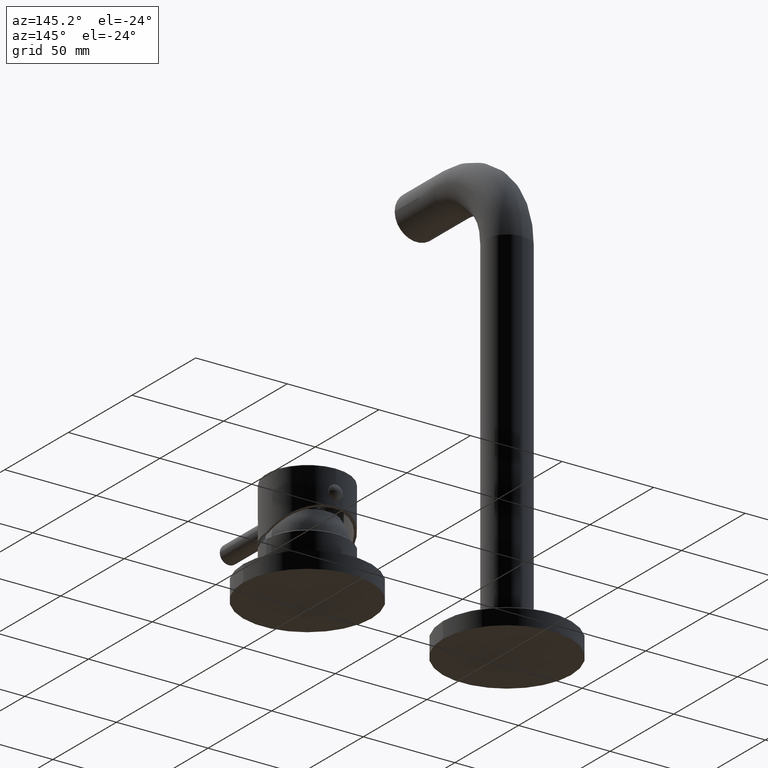
[diagram: clean part render]
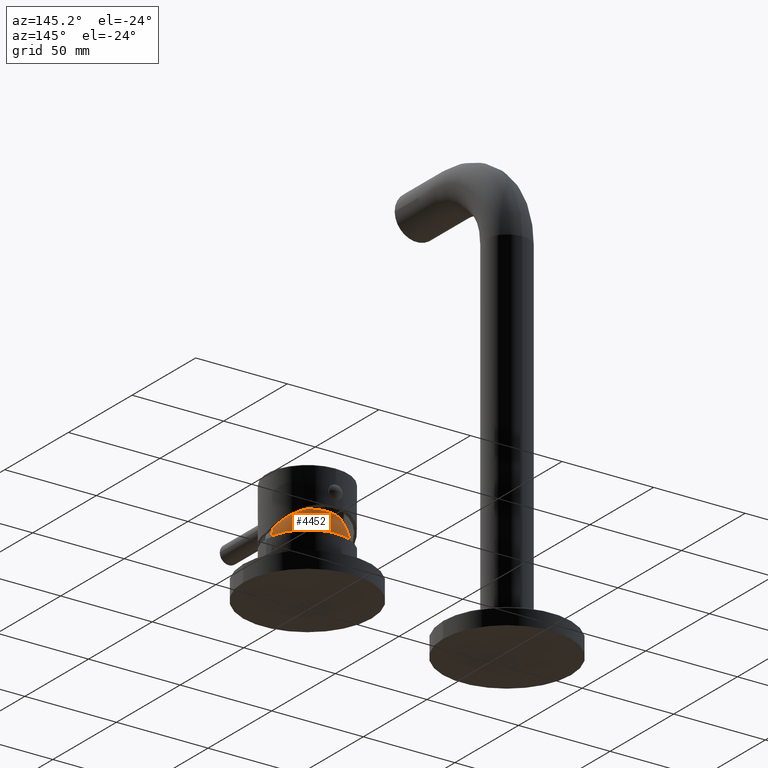
[diagram: same view with one face highlighted and labeled with its STEP entity id]
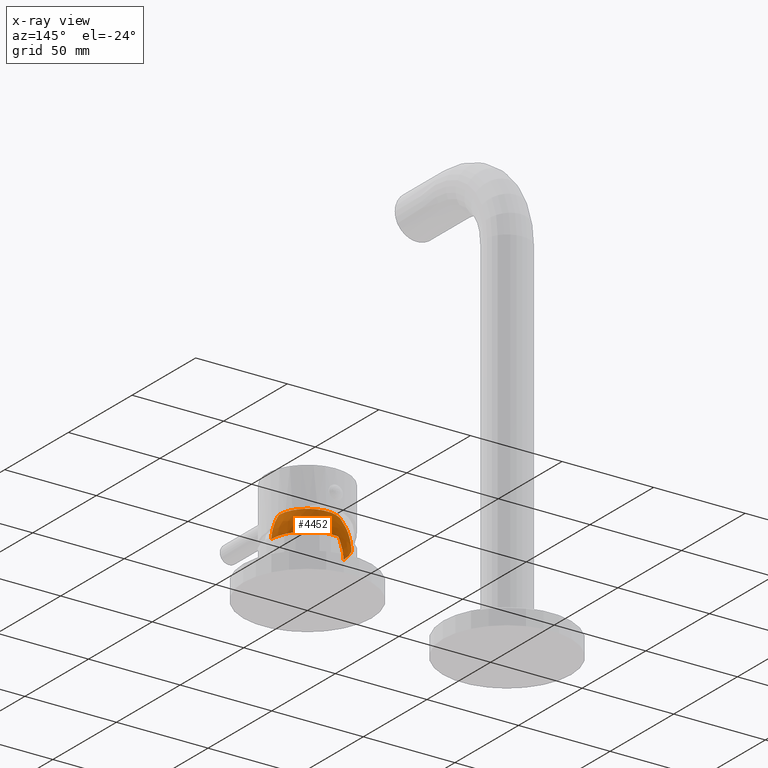
[diagram: x-ray of the same camera — body ghosted, the highlighted face saturated]
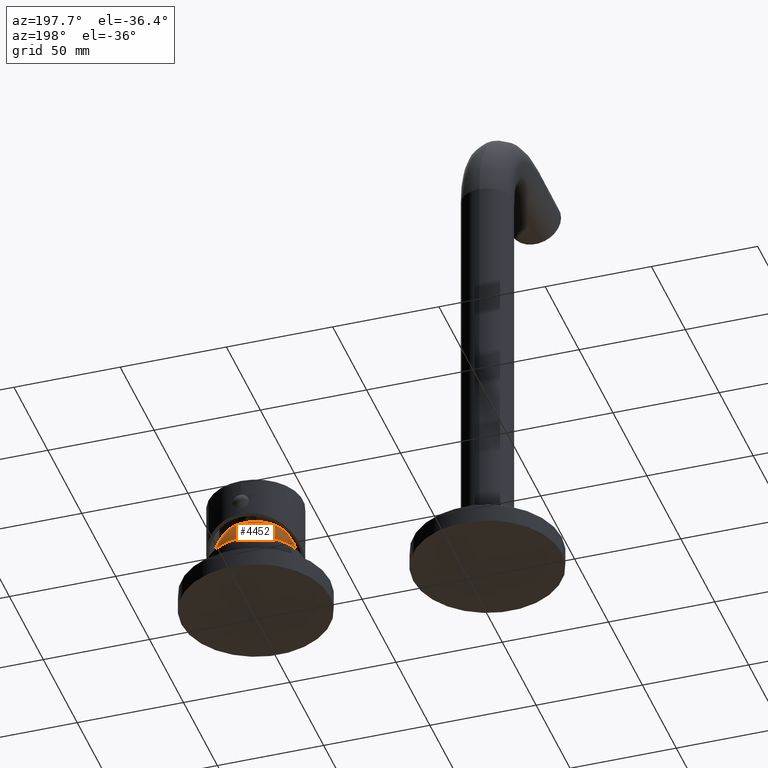
[diagram: same view with one face highlighted and labeled with its STEP entity id]
A machine part, auxiliary view. The second image highlights one B-rep face of the part: STEP entity #4452.
The next image is the same camera in x-ray: the body ghosted, the highlighted face saturated — about 1% of this face is hidden behind the body in this view.
A second angle (auxiliary view) of the same face is appended — the face is thin or edge-on in the first view.
In plain terms, the highlighted face is a freeform B-spline surface patch.
Its self-contained STEP definition (entity closure, byte-faithful):
#915=CARTESIAN_POINT('',(0.E0,0.E0,7.95E1));
#916=DIRECTION('',(0.E0,0.E0,-1.E0));
#917=DIRECTION('',(-1.E0,0.E0,0.E0));
#918=AXIS2_PLACEMENT_3D('',#915,#916,#917);
#920=CARTESIAN_POINT('',(1.004726332328E1,0.E0,6.401934569555E1));
#921=DIRECTION('',(0.E0,1.E0,0.E0));
#922=DIRECTION('',(-9.965754441095E-1,0.E0,8.268847681486E-2));
#923=AXIS2_PLACEMENT_3D('',#920,#921,#922);
#925=CARTESIAN_POINT('',(-1.004726332328E1,1.035984162831E-14,
6.401934569555E1));
#926=DIRECTION('',(0.E0,-1.E0,0.E0));
#927=DIRECTION('',(9.965754441095E-1,0.E0,8.268847681486E-2));
#928=AXIS2_PLACEMENT_3D('',#925,#926,#927);
#940=CARTESIAN_POINT('',(0.E0,0.E0,6.65E1));
#941=DIRECTION('',(0.E0,0.E0,-1.E0));
#942=DIRECTION('',(-1.E0,0.E0,0.E0));
#943=AXIS2_PLACEMENT_3D('',#940,#941,#942);
#2883=CARTESIAN_POINT('',(-1.565E1,0.E0,7.95E1));
#2884=CARTESIAN_POINT('',(1.565E1,0.E0,7.95E1));
#2885=VERTEX_POINT('',#2883);
#2886=VERTEX_POINT('',#2884);
#2887=CARTESIAN_POINT('',(-1.985E1,1.032989575081E-14,6.65E1));
#2888=CARTESIAN_POINT('',(1.985E1,0.E0,6.65E1));
#2889=VERTEX_POINT('',#2887);
#2890=VERTEX_POINT('',#2888);
#4417=CARTESIAN_POINT('',(-1.547607681865E1,-9.736722234376E-1,
7.973545845742E1));
#4418=CARTESIAN_POINT('',(-1.799821744053E1,-1.132351861430E0,
7.562642343802E1));
#4419=CARTESIAN_POINT('',(-1.947832181786E1,-1.225472135830E0,
7.103609000990E1));
#4420=CARTESIAN_POINT('',(-1.983231881511E1,-1.247743739121E0,
6.622519285487E1));
#4421=CARTESIAN_POINT('',(-1.607527333919E1,8.550283742432E0,7.973545845742E1));
#4422=CARTESIAN_POINT('',(-1.869506518770E1,9.943725905327E0,7.562642343802E1));
#4423=CARTESIAN_POINT('',(-2.023247565128E1,1.076145978859E1,7.103609000990E1));
#4424=CARTESIAN_POINT('',(-2.060017856196E1,1.095703744086E1,6.622519285487E1));
#4425=CARTESIAN_POINT('',(-9.542786475136E0,1.550667570099E1,7.973545845742E1));
#4426=CARTESIAN_POINT('',(-1.109797708945E1,1.803380303138E1,7.562642343802E1));
#4427=CARTESIAN_POINT('',(-1.201063216343E1,1.951683383123E1,7.103609000990E1));
#4428=CARTESIAN_POINT('',(-1.222891214467E1,1.987153074181E1,6.622519285487E1));
#4429=CARTESIAN_POINT('',(0.E0,1.550667570099E1,7.973545845742E1));
#4430=CARTESIAN_POINT('',(0.E0,1.803380303138E1,7.562642343802E1));
#4431=CARTESIAN_POINT('',(0.E0,1.951683383123E1,7.103609000990E1));
#4432=CARTESIAN_POINT('',(0.E0,1.987153074181E1,6.622519285487E1));
#4433=CARTESIAN_POINT('',(9.542786475136E0,1.550667570099E1,7.973545845742E1));
#4434=CARTESIAN_POINT('',(1.109797708945E1,1.803380303138E1,7.562642343802E1));
#4435=CARTESIAN_POINT('',(1.201063216343E1,1.951683383123E1,7.103609000990E1));
#4436=CARTESIAN_POINT('',(1.222891214467E1,1.987153074181E1,6.622519285487E1));
#4437=CARTESIAN_POINT('',(1.607527333919E1,8.550283742432E0,7.973545845742E1));
#4438=CARTESIAN_POINT('',(1.869506518770E1,9.943725905327E0,7.562642343802E1));
#4439=CARTESIAN_POINT('',(2.023247565128E1,1.076145978859E1,7.103609000990E1));
#4440=CARTESIAN_POINT('',(2.060017856196E1,1.095703744086E1,6.622519285487E1));
#4441=CARTESIAN_POINT('',(1.547607681865E1,-9.736722234376E-1,
7.973545845742E1));
#4442=CARTESIAN_POINT('',(1.799821744053E1,-1.132351861430E0,7.562642343802E1));
#4443=CARTESIAN_POINT('',(1.947832181786E1,-1.225472135830E0,7.103609000990E1));
#4444=CARTESIAN_POINT('',(1.983231881511E1,-1.247743739121E0,6.622519285487E1));
#4445=(BOUNDED_SURFACE()B_SPLINE_SURFACE(3,3,((#4417,#4418,#4419,#4420),(#4421,
#4422,#4423,#4424),(#4425,#4426,#4427,#4428),(#4429,#4430,#4431,#4432),(#4433,
#4434,#4435,#4436),(#4437,#4438,#4439,#4440),(#4441,#4442,#4443,#4444)),
.UNSPECIFIED.,.F.,.F.,.F.)B_SPLINE_SURFACE_WITH_KNOTS((4,3,4),(4,4),(0.E0,1.E0,
2.E0),(0.E0,1.E0),.UNSPECIFIED.)GEOMETRIC_REPRESENTATION_ITEM()RATIONAL_B_SPLINE_SURFACE(((1.204364960451E0,1.181561989842E0,1.181561989842E0,1.204364960451E0),(
9.510846855898E-1,9.330772236949E-1,9.330772236949E-1,9.510846855898E-1),(
9.510846855898E-1,9.330772236949E-1,9.330772236949E-1,9.510846855898E-1),(
1.204364960451E0,1.181561989842E0,1.181561989842E0,1.204364960451E0),(
9.510846855898E-1,9.330772236949E-1,9.330772236949E-1,9.510846855898E-1),(
9.510846855898E-1,9.330772236949E-1,9.330772236949E-1,9.510846855898E-1),(
1.204364960451E0,1.181561989842E0,1.181561989842E0,1.204364960451E0)))REPRESENTATION_ITEM('')SURFACE());
#4446=ORIENTED_EDGE('',*,*,#4238,.T.);
#4447=ORIENTED_EDGE('',*,*,#4215,.T.);
#4448=ORIENTED_EDGE('',*,*,#4164,.F.);
#4449=ORIENTED_EDGE('',*,*,#4212,.F.);
#4450=EDGE_LOOP('',(#4446,#4447,#4448,#4449));
#4451=FACE_OUTER_BOUND('',#4450,.F.);
#4452=ADVANCED_FACE('',(#4451),#4445,.T.);
#919=CIRCLE('',#918,1.565E1);
#924=CIRCLE('',#923,3.E1);
#929=CIRCLE('',#928,3.E1);
#944=CIRCLE('',#943,1.985E1);
#4164=EDGE_CURVE('',#2885,#2886,#919,.T.);
#4212=EDGE_CURVE('',#2889,#2885,#924,.T.);
#4215=EDGE_CURVE('',#2890,#2886,#929,.T.);
#4238=EDGE_CURVE('',#2889,#2890,#944,.T.);